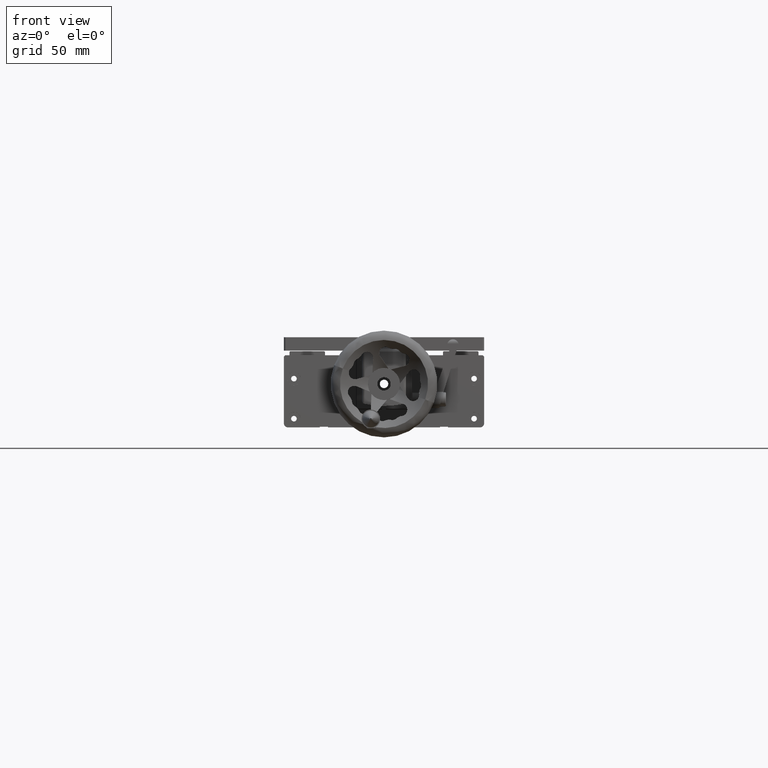
[diagram: clean part render]
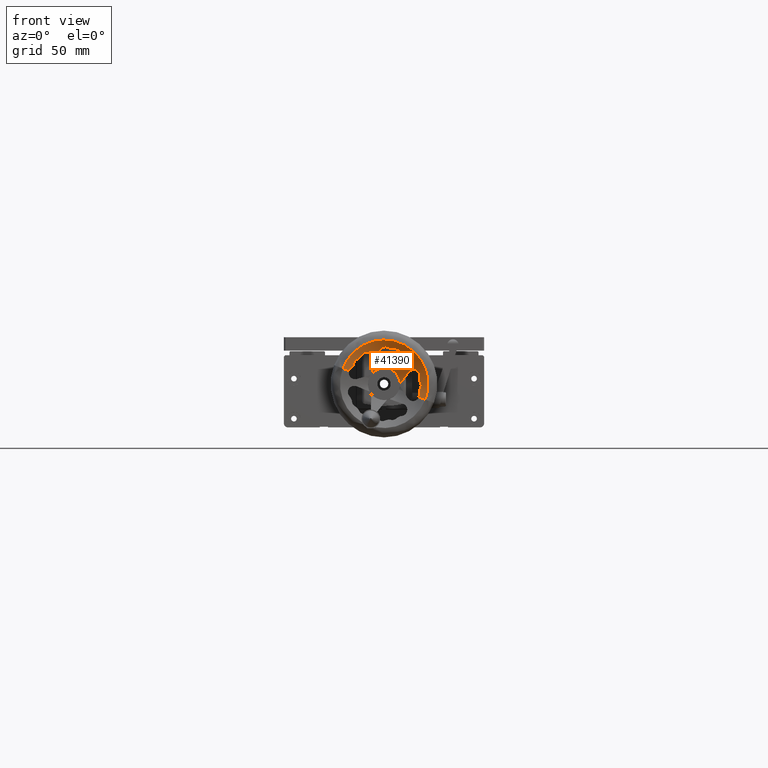
[diagram: same view with one face highlighted and labeled with its STEP entity id]
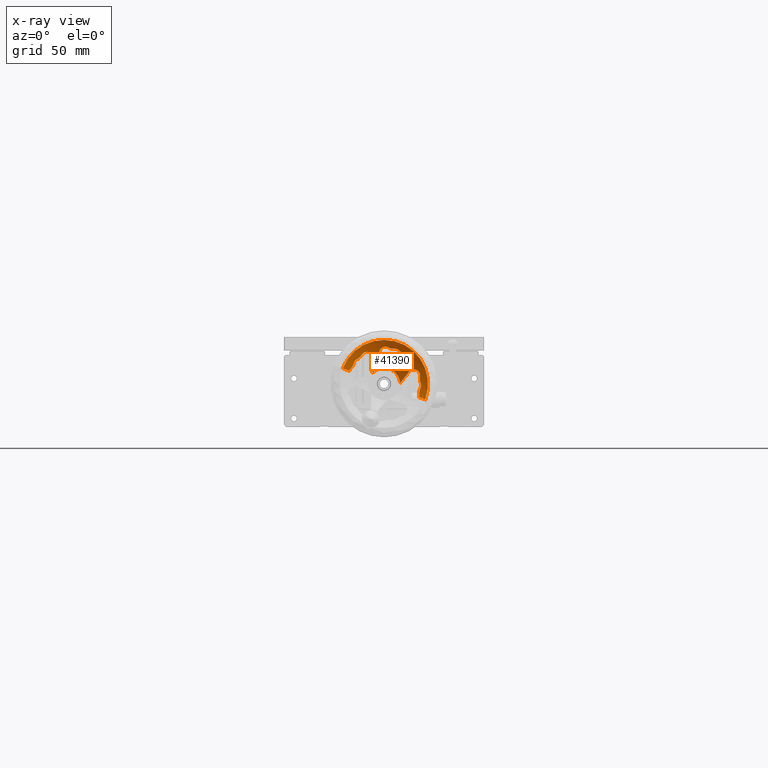
[diagram: x-ray of the same camera — body ghosted, the highlighted face saturated]
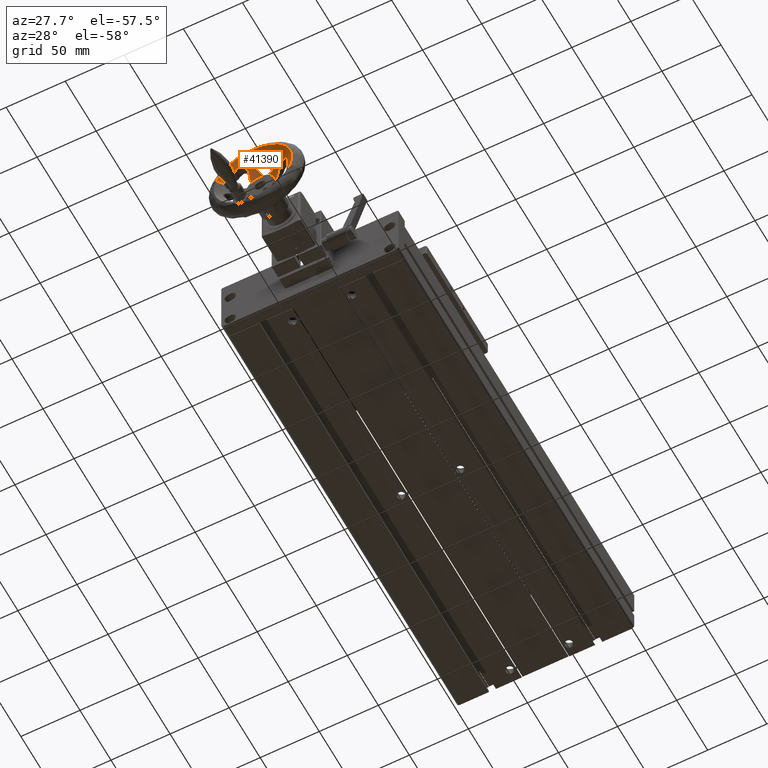
[diagram: same view with one face highlighted and labeled with its STEP entity id]
A machine part, front view. The second image highlights one B-rep face of the part: STEP entity #41390.
The next image is the same camera in x-ray: the body ghosted, the highlighted face saturated — about 0% of this face is hidden behind the body in this view.
A second angle (auxiliary view) of the same face is appended — the face is thin or edge-on in the first view.
In plain terms, the highlighted toroidal blend (fillet) surface has major radius 88.219 mm and minor (blend) radius 200 mm.
Its self-contained STEP definition (entity closure, byte-faithful):
#15 = CARTESIAN_POINT ( 'NONE',  ( -1.251474270565857028, -230.6672517025057516, 7.577416934611189703 ) ) ;
#97 = CARTESIAN_POINT ( 'NONE',  ( -29.11043134330199322, -230.8246480840629147, 39.72000367988550096 ) ) ;
#119 = CARTESIAN_POINT ( 'NONE',  ( -0.09421054364907681389, -231.2252468472381395, 10.35909060780936564 ) ) ;
#137 = CARTESIAN_POINT ( 'NONE',  ( -1.747598550836897413, -231.2658271515407762, 2.670001552165228276 ) ) ;
#184 = CARTESIAN_POINT ( 'NONE',  ( -1.071836799891750402, -230.7295666138571733, 8.100303935126479615 ) ) ;
#190 = CARTESIAN_POINT ( 'NONE',  ( -25.60282721551329388, -221.7940607396459427, 25.60854005638072550 ) ) ;
#230 = EDGE_CURVE ( 'NONE', #35567, #34683, #19566, .T. ) ;
#236 = CARTESIAN_POINT ( 'NONE',  ( -44.64287174048293849, -230.9596664332798639, 34.18233085000480287 ) ) ;
#471 = CARTESIAN_POINT ( 'NONE',  ( -11.32365439383828942, -231.1977958584856481, 34.84184575565993214 ) ) ;
#504 = CARTESIAN_POINT ( 'NONE',  ( -50.69275575712018878, -230.7841996942269986, 27.21851706879289878 ) ) ;
#542 = CARTESIAN_POINT ( 'NONE',  ( -30.35576520417523128, -230.1467556412366946, 38.66325935085155407 ) ) ;
#624 = CARTESIAN_POINT ( 'NONE',  ( -27.14345898058186535, -223.0604045670582707, 27.89589975946459433 ) ) ;
#711 = CARTESIAN_POINT ( 'NONE',  ( -50.88600797903935558, -230.7063936910209065, 26.70140006332925964 ) ) ;
#887 = DIRECTION ( 'NONE',  ( -0.9357330796241757342, 0.000000000000000000, 0.3527089504067849601 ) ) ;
#905 = CARTESIAN_POINT ( 'NONE',  ( -10.58405111890934691, -231.2681675500791982, 34.40207894826129831 ) ) ;
#1063 = EDGE_CURVE ( 'NONE', #35259, #41635, #34959, .T. ) ;
#1171 = CARTESIAN_POINT ( 'NONE',  ( -31.41264577065551578, -227.9685632785866574, 35.31961070689027338 ) ) ;
#1384 = ORIENTED_EDGE ( 'NONE', *, *, #31435, .F. ) ;
#1601 = CARTESIAN_POINT ( 'NONE',  ( -51.68751099054779985, -230.6793691775528714, 25.23183532385245442 ) ) ;
#1666 = EDGE_CURVE ( 'NONE', #21610, #29083, #27510, .T. ) ;
#1760 = CARTESIAN_POINT ( 'NONE',  ( -40.95282194118102126, -230.9261969511676114, 36.54358557440533417 ) ) ;
#1887 = CARTESIAN_POINT ( 'NONE',  ( -6.309048253267408590, -228.6074920186753729, 23.23750020429138630 ) ) ;
#1981 = CARTESIAN_POINT ( 'NONE',  ( -43.77269443316468767, -231.2314881615903346, 35.30030443959185504 ) ) ;
#2058 = CARTESIAN_POINT ( 'NONE',  ( -17.65149977641116408, -231.2659377550066040, 38.44904520844385587 ) ) ;
#2625 = CARTESIAN_POINT ( 'NONE',  ( -13.53472033259182083, -222.6226366815946847, 15.89007477967075133 ) ) ;
#2713 = VERTEX_POINT ( 'NONE', #12844 ) ;
#2767 = ORIENTED_EDGE ( 'NONE', *, *, #20194, .F. ) ;
#2883 = CARTESIAN_POINT ( 'NONE',  ( -12.75764972884986292, -230.8604761286815403, 35.26614478493905125 ) ) ;
#2948 = CARTESIAN_POINT ( 'NONE',  ( -9.206019924550350453, -228.9157247906524617, 28.42387298186278599 ) ) ;
#3006 = B_SPLINE_CURVE_WITH_KNOTS ( 'NONE', 3,
 ( #38133, #7416, #10135, #7189, #21121, #15, #41273, #34554 ),
 .UNSPECIFIED., .F., .F.,
 ( 4, 2, 2, 4 ),
 ( 3.556778064983737496E-17, 0.001665771565933717559, 0.002498657348900558666, 0.003331543131867399556 ),
 .UNSPECIFIED. ) ;
#3179 = CARTESIAN_POINT ( 'NONE',  ( -9.404230165889739368, -231.1270689145550250, 33.15456906067897336 ) ) ;
#3274 = CARTESIAN_POINT ( 'NONE',  ( -36.75593191590586173, -228.4463586638071604, 34.57189405988508213 ) ) ;
#3397 = CARTESIAN_POINT ( 'NONE',  ( -8.768741026429207608, -230.6509607355858975, 31.63119875561022099 ) ) ;
#3436 = VERTEX_POINT ( 'NONE', #6159 ) ;
#3475 = CARTESIAN_POINT ( 'NONE',  ( -26.07521255399808169, -231.2542024538802252, 40.29914110041999464 ) ) ;
#3504 = CARTESIAN_POINT ( 'NONE',  ( -0.8661047036434335045, -230.6865836009215514, 14.74529765654007463 ) ) ;
#3709 = CARTESIAN_POINT ( 'NONE',  ( 0.02657360641001855692, -231.2715208969111416, 11.28171204251044735 ) ) ;
#3781 = B_SPLINE_CURVE_WITH_KNOTS ( 'NONE', 3,
 ( #40404, #5667, #16426, #36393, #30133, #39961, #25873, #43573 ),
 .UNSPECIFIED., .F., .F.,
 ( 4, 2, 2, 4 ),
 ( 1.243205043575176586E-16, 0.003033436196410273060, 0.006066872392820421220, 0.01213374478564075744 ),
 .UNSPECIFIED. ) ;
#3932 = CARTESIAN_POINT ( 'NONE',  ( -1.724916406133282898, -231.0716637388797778, 21.46558485724892051 ) ) ;
#3948 = VERTEX_POINT ( 'NONE', #44232 ) ;
#4159 = CARTESIAN_POINT ( 'NONE',  ( -0.4006779422409262326, -230.9596664132262447, 13.36019273715610645 ) ) ;
#4203 = CARTESIAN_POINT ( 'NONE',  ( -44.82184531291257912, -230.8604761443751556, 33.86643442070432997 ) ) ;
#4304 = CARTESIAN_POINT ( 'NONE',  ( -31.41071755680489730, -228.4576811112558232, 36.05520637367717995 ) ) ;
#4307 = CARTESIAN_POINT ( 'NONE',  ( -50.95763369419255184, -230.6865836019239850, 26.53042673763086157 ) ) ;
#4426 = CARTESIAN_POINT ( 'NONE',  ( -44.64287174048293849, -230.9596664332798639, 34.18233085000480287 ) ) ;
#4671 = CARTESIAN_POINT ( 'NONE',  ( -22.73578093721375026, -230.6531243522441912, 39.02407946876078881 ) ) ;
#4723 = CARTESIAN_POINT ( 'NONE',  ( -11.85294843830956957, -231.1002210257394722, 35.05540478678162941 ) ) ;
#4758 = CARTESIAN_POINT ( 'NONE',  ( -51.20269293039049074, -230.6532000534531903, 26.02391311284409525 ) ) ;
#4867 = B_SPLINE_CURVE_WITH_KNOTS ( 'NONE', 3,
 ( #7496, #17591, #28157, #31297, #41801, #3475, #21207, #34865, #18027, #10439, #17133, #11092, #37774, #97, #34633, #38439, #24135, #13789, #542, #31064, #14231, #7718, #27924 ),
 .UNSPECIFIED., .F., .F.,
 ( 4, 2, 2, 1, 2, 2, 2, 2, 2, 2, 2, 4 ),
 ( 1.736110700089721879E-16, 0.001059331762156469391, 0.001588997643234625482, 0.002118663524312780922, 0.002648329405390937013, 0.003177995286469093104, 0.004237327048625381433, 0.005296658810781669328, 0.005826324691859795929, 0.006355990572937921662, 0.007415322335094180935, 0.008474654097250440207 ),
 .UNSPECIFIED. ) ;
#5124 = ORIENTED_EDGE ( 'NONE', *, *, #22479, .T. ) ;
#5128 = CARTESIAN_POINT ( 'NONE',  ( -39.86493628493158070, -230.5446354805237092, 36.50276479583381928 ) ) ;
#5346 = CARTESIAN_POINT ( 'NONE',  ( -43.32839094334096330, -231.2681675518207669, 35.66663849502686645 ) ) ;
#5425 = EDGE_CURVE ( 'NONE', #23451, #22850, #38806, .T. ) ;
#5434 = CARTESIAN_POINT ( 'NONE',  ( -16.70708034827027078, -231.1356288341648906, 37.85878606016145653 ) ) ;
#5475 = CARTESIAN_POINT ( 'NONE',  ( -4.357755286596519895, -229.8006780505870097, 23.18659850079991358 ) ) ;
#5537 = VERTEX_POINT ( 'NONE', #5927 ) ;
#5654 = VERTEX_POINT ( 'NONE', #17123 ) ;
#5667 = CARTESIAN_POINT ( 'NONE',  ( -36.48314934651601504, -221.4030008482865526, 21.70397116928012693 ) ) ;
#5754 = CARTESIAN_POINT ( 'NONE',  ( -15.24826781174346024, -221.4030008482863536, 13.69983736100359728 ) ) ;
#5783 = CARTESIAN_POINT ( 'NONE',  ( -39.10172791565873496, -230.1936771701986117, 36.31780667586350830 ) ) ;
#5891 = CARTESIAN_POINT ( 'NONE',  ( -27.82647947996263227, -221.0472645979106971, 12.50000000000231637 ) ) ;
#5927 = CARTESIAN_POINT ( 'NONE',  ( -53.90536040908840931, -231.2658271515405772, 22.32999844783952881 ) ) ;
#5947 = DIRECTION ( 'NONE',  ( 0.9357330796241758453, 0.000000000000000000, -0.3527089504067847936 ) ) ;
#6159 = CARTESIAN_POINT ( 'NONE',  ( -58.70567110756002904, -235.0472645979105550, 24.13939536342605408 ) ) ;
#6315 = CARTESIAN_POINT ( 'NONE',  ( -11.66313210932026756, -226.7145665492642479, 26.22889493614411194 ) ) ;
#6412 = CARTESIAN_POINT ( 'NONE',  ( -52.94303986058586275, -231.0588892356517761, 23.89678473942380776 ) ) ;
#6466 = CARTESIAN_POINT ( 'NONE',  ( -13.10796256831810069, -230.7841996630289145, 35.36627632601064164 ) ) ;
#6526 = CARTESIAN_POINT ( 'NONE',  ( -9.455268662336289154, -228.6034456413083547, 28.00824651433754653 ) ) ;
#6932 = VERTEX_POINT ( 'NONE', #36598 ) ;
#7075 = CARTESIAN_POINT ( 'NONE',  ( -0.7923870789131953751, -231.0988003334202574, 18.23983745885011487 ) ) ;
#7189 = CARTESIAN_POINT ( 'NONE',  ( -1.435478733286328579, -230.6535307270791009, 6.761800633431623631 ) ) ;
#7245 = CARTESIAN_POINT ( 'NONE',  ( -49.09027173442304104, -231.2390054235078196, 30.46172359483011149 ) ) ;
#7314 = ORIENTED_EDGE ( 'NONE', *, *, #39875, .F. ) ;
#7382 = CARTESIAN_POINT ( 'NONE',  ( -31.01142681135522849, -226.8822082838673566, 33.72390581578375190 ) ) ;
#7416 = CARTESIAN_POINT ( 'NONE',  ( -1.538300897532330014, -230.8113833044534715, 5.382371716724052568 ) ) ;
#7496 = CARTESIAN_POINT ( 'NONE',  ( -24.43368368756598130, -230.9596663953781785, 39.72872478699030552 ) ) ;
#7520 = CARTESIAN_POINT ( 'NONE',  ( -0.2814740170182649104, -231.1299046920082674, 9.778950854992029207 ) ) ;
#7523 = DIRECTION ( 'NONE',  ( 4.228820139608123808E-15, 1.000000000000000000, -4.668327421766500901E-16 ) ) ;
#7677 = CARTESIAN_POINT ( 'NONE',  ( -31.24495531687533045, -229.0533374946240031, 36.96441875835737534 ) ) ;
#7716 = ORIENTED_EDGE ( 'NONE', *, *, #28981, .T. ) ;
#7718 = CARTESIAN_POINT ( 'NONE',  ( -31.01545888794159112, -229.4689577717829252, 37.60614130149133416 ) ) ;
#7783 = CARTESIAN_POINT ( 'NONE',  ( -47.52948998401029002, -230.8604277577395862, 31.39853802009229256 ) ) ;
#8181 = CARTESIAN_POINT ( 'NONE',  ( -5.831446046305917008, -228.9178738112350118, 23.30110449741069445 ) ) ;
#8259 = CARTESIAN_POINT ( 'NONE',  ( -21.63067046663480397, -230.6865836009213240, 38.83467524608060728 ) ) ;
#8413 = CARTESIAN_POINT ( 'NONE',  ( -7.001895771518103828, -228.1335088370313713, 23.05258266812591472 ) ) ;
#8564 = CARTESIAN_POINT ( 'NONE',  ( -1.477178048168888091, -230.9596664332800344, 4.843053232189254764 ) ) ;
#8605 = B_SPLINE_CURVE_WITH_KNOTS ( 'NONE', 3,
 ( #36971, #2883, #6466, #10076, #23328, #23766, #13649, #9643, #16564, #30271, #43929, #23093 ),
 .UNSPECIFIED., .F., .F.,
 ( 4, 2, 2, 2, 2, 4 ),
 ( 3.417008968066606564E-17, 0.001114276193955983634, 0.001671414290933961790, 0.002228552387911939946, 0.003342828581867896259, 0.004457104775823857341 ),
 .UNSPECIFIED. ) ;
#8723 = CARTESIAN_POINT ( 'NONE',  ( -42.32193144314729238, -231.2154519200252878, 36.22261789138258337 ) ) ;
#8802 = CARTESIAN_POINT ( 'NONE',  ( -18.89562272516246466, -231.2128299121012276, 38.82240954611904016 ) ) ;
#9035 = CARTESIAN_POINT ( 'NONE',  ( -19.44551521887871104, -231.1347387500530033, 38.88939589239999606 ) ) ;
#9080 = CARTESIAN_POINT ( 'NONE',  ( -2.285981301982375591, -230.8452621190603224, 22.08222870984774389 ) ) ;
#9590 = CARTESIAN_POINT ( 'NONE',  ( -53.59240703488189439, -231.2329824527881783, 23.00339452172125831 ) ) ;
#9643 = CARTESIAN_POINT ( 'NONE',  ( -14.78854631104180939, -230.6531243613655136, 36.15278636238678445 ) ) ;
#9814 = CARTESIAN_POINT ( 'NONE',  ( -52.67410403862962198, -230.9596663872225406, 24.14087926122622818 ) ) ;
#9997 = B_SPLINE_CURVE_WITH_KNOTS ( 'NONE', 3,
 ( #4159, #38665, #30866, #24811, #42053, #3709, #38006, #119, #10458, #7520 ),
 .UNSPECIFIED., .F., .F.,
 ( 4, 2, 2, 2, 4 ),
 ( 0.000000000000000000, 0.0009245142210640179808, 0.001849028442128035962, 0.002773542663192053725, 0.003698056884256071923 ),
 .UNSPECIFIED. ) ;
#10076 = CARTESIAN_POINT ( 'NONE',  ( -13.62507958530520646, -230.7063936694198105, 35.55952856705073373 ) ) ;
#10135 = CARTESIAN_POINT ( 'NONE',  ( -1.537697110410599421, -230.7139133281197303, 5.929111352157447001 ) ) ;
#10140 = CARTESIAN_POINT ( 'NONE',  ( -12.14811200581972628, -226.4222165838596084, 26.10137416611496519 ) ) ;
#10251 = CARTESIAN_POINT ( 'NONE',  ( -0.4754770725625681038, -231.0269419708660905, 9.320953952445764301 ) ) ;
#10360 = CARTESIAN_POINT ( 'NONE',  ( -8.663719101622632479, -230.3162707390106050, 30.84340884725546061 ) ) ;
#10439 = CARTESIAN_POINT ( 'NONE',  ( -27.31216661449100513, -231.2295034938307197, 40.31481576106340015 ) ) ;
#10458 = CARTESIAN_POINT ( 'NONE',  ( -0.1743516661469823870, -231.1858394796079494, 10.06314530813198971 ) ) ;
#10468 = CARTESIAN_POINT ( 'NONE',  ( -1.003469391926770982, -230.7828937303671637, 16.96412911401098356 ) ) ;
#10629 = CARTESIAN_POINT ( 'NONE',  ( -49.36124636741128313, -231.2659377547786619, 30.19567671165900435 ) ) ;
#10674 = CARTESIAN_POINT ( 'NONE',  ( -1.159090727231262274, -231.2411873942976399, 20.48007631129516071 ) ) ;
#10842 = CARTESIAN_POINT ( 'NONE',  ( -50.10079209053726146, -231.2128299124469777, 29.12782139794272140 ) ) ;
#10884 = ORIENTED_EDGE ( 'NONE', *, *, #40144, .F. ) ;
#11092 = CARTESIAN_POINT ( 'NONE',  ( -28.17030365857313967, -231.1009350148752617, 40.13818652283171673 ) ) ;
#11123 = FACE_OUTER_BOUND ( 'NONE', #23298, .T. ) ;
#11175 = CARTESIAN_POINT ( 'NONE',  ( -45.48987421334945225, -230.6865835889794312, 32.99164842626442606 ) ) ;
#11345 = CARTESIAN_POINT ( 'NONE',  ( -0.8877381073699135428, -231.2678754046117149, 19.66122285645100121 ) ) ;
#11447 = B_SPLINE_CURVE_WITH_KNOTS ( 'NONE', 3,
 ( #41439, #17685, #17450, #624, #28476, #190, #28018, #37859 ),
 .UNSPECIFIED., .F., .F.,
 ( 4, 2, 2, 4 ),
 ( 4.380442988691107781E-16, 0.006066872392816883251, 0.009100308589225123215, 0.01213374478563336231 ),
 .UNSPECIFIED. ) ;
#11511 = CARTESIAN_POINT ( 'NONE',  ( -19.80903196666800525, -231.0587844104445310, 38.89015824602493865 ) ) ;
#11558 = CARTESIAN_POINT ( 'NONE',  ( -5.094521958954942420, -229.3730282655863562, 23.30282529106901634 ) ) ;
#11778 = CARTESIAN_POINT ( 'NONE',  ( -7.660324587658288387, -227.6530563109672869, 22.76292629540331092 ) ) ;
#11873 = CARTESIAN_POINT ( 'NONE',  ( -36.89868202254425000, -228.6034456292862558, 34.76437147167755626 ) ) ;
#11952 = CARTESIAN_POINT ( 'NONE',  ( -30.62592210225523104, -226.4222165838500018, 33.06627596005964165 ) ) ;
#11992 = CARTESIAN_POINT ( 'NONE',  ( -15.83491941461141828, -221.0472645979110098, 12.94998577652424210 ) ) ;
#11999 = CARTESIAN_POINT ( 'NONE',  ( -2.930902668012779433, -230.5487792153343207, 22.57889346255842966 ) ) ;
#12069 = CARTESIAN_POINT ( 'NONE',  ( -23.09124879036163236, -230.6793691793447749, 39.12754299439421857 ) ) ;
#12140 = ORIENTED_EDGE ( 'NONE', *, *, #230, .F. ) ;
#12201 = CARTESIAN_POINT ( 'NONE',  ( -8.977692602492350460, -226.5680829445339839, 21.71481717741857054 ) ) ;
#12304 = CARTESIAN_POINT ( 'NONE',  ( -44.50433564307560630, -231.0364455747977388, 34.42685332880790128 ) ) ;
#12385 = CARTESIAN_POINT ( 'NONE',  ( -16.18560038869533457, -230.9596664961959789, 37.34762474592213977 ) ) ;
#12844 = CARTESIAN_POINT ( 'NONE',  ( -24.43368368756598130, -230.9596663953781785, 39.72872478699030552 ) ) ;
#12853 = DIRECTION ( 'NONE',  ( -0.9357330796241757342, 4.625929269271485322E-15, 0.3527089504067851267 ) ) ;
#12942 = ORIENTED_EDGE ( 'NONE', *, *, #23780, .T. ) ;
#12989 = CARTESIAN_POINT ( 'NONE',  ( -27.82647947996269266, -235.0472645979106971, 12.50000000000232347 ) ) ;
#13296 = EDGE_CURVE ( 'NONE', #15267, #5654, #8605, .T. ) ;
#13649 = CARTESIAN_POINT ( 'NONE',  ( -14.30256654763686264, -230.6532000484875198, 35.87621354676069529 ) ) ;
#13712 = CARTESIAN_POINT ( 'NONE',  ( -9.594213350244817917, -228.4463586750179900, 27.81300430227310017 ) ) ;
#13789 = CARTESIAN_POINT ( 'NONE',  ( -30.02387999602019164, -230.3696240543054046, 39.01178283300781402 ) ) ;
#13816 = CARTESIAN_POINT ( 'NONE',  ( -1.027468499520208578, -230.6531243522443901, 15.85484929442473501 ) ) ;
#13985 = CARTESIAN_POINT ( 'NONE',  ( -50.01141594461855533, -231.2328291351408609, 29.29347685866189721 ) ) ;
#14114 = B_SPLINE_CURVE_WITH_KNOTS ( 'NONE', 3,
 ( #9814, #6412, #24764, #19904, #9590, #27283, #34018, #38410 ),
 .UNSPECIFIED., .F., .F.,
 ( 4, 2, 2, 4 ),
 ( 3.469446951953614189E-18, 0.001114574108103040312, 0.001671861162154564479, 0.002229148216206088863 ),
 .UNSPECIFIED. ) ;
#14211 = CARTESIAN_POINT ( 'NONE',  ( -48.19167670051806596, -231.0588080310190549, 31.10055233200387192 ) ) ;
#14231 = CARTESIAN_POINT ( 'NONE',  ( -30.88067398539558184, -229.6455795070860120, 37.88075420735324883 ) ) ;
#14256 = CARTESIAN_POINT ( 'NONE',  ( -0.8248546637887524957, -231.0361768311458661, 17.96156408255822967 ) ) ;
#14527 = CARTESIAN_POINT ( 'NONE',  ( -46.29267312838413773, -230.6531243593418026, 32.20892427327859764 ) ) ;
#14584 = ORIENTED_EDGE ( 'NONE', *, *, #29616, .F. ) ;
#14679 = B_SPLINE_CURVE_WITH_KNOTS ( 'NONE', 3,
 ( #18358, #42546, #42332, #32050, #8259, #15188, #38525, #4671, #12069, #25097, #35393, #39185 ),
 .UNSPECIFIED., .F., .F.,
 ( 4, 2, 2, 2, 2, 4 ),
 ( -1.469766198938099455E-10, 0.001114276024044777436, 0.001671414109555480979, 0.002228552195066184523, 0.003342828366087591610, 0.004457104537108998697 ),
 .UNSPECIFIED. ) ;
#14693 = CARTESIAN_POINT ( 'NONE',  ( -0.8819917825959727731, -230.9596663953782922, 17.68739814752235162 ) ) ;
#14846 = CARTESIAN_POINT ( 'NONE',  ( -31.36642957711494617, -228.6978953784460487, 36.42017830273117340 ) ) ;
#15052 = CARTESIAN_POINT ( 'NONE',  ( -51.47926572495681796, -230.6531243515185281, 25.53793335269826414 ) ) ;
#15170 = VERTEX_POINT ( 'NONE', #27858 ) ;
#15188 = CARTESIAN_POINT ( 'NONE',  ( -22.00204673309162118, -230.6599187543164078, 38.88057039902998469 ) ) ;
#15203 = ORIENTED_EDGE ( 'NONE', *, *, #20250, .F. ) ;
#15267 = VERTEX_POINT ( 'NONE', #21577 ) ;
#15440 = CARTESIAN_POINT ( 'NONE',  ( -41.50099401452267500, -231.0682110994576419, 36.46687238763036021 ) ) ;
#15524 = CARTESIAN_POINT ( 'NONE',  ( -18.17227609273661315, -231.2657713217310516, 38.64504338910678172 ) ) ;
#15566 = CARTESIAN_POINT ( 'NONE',  ( -7.867297511578441593, -227.4949366025862219, 22.64525642428828078 ) ) ;
#15660 = CARTESIAN_POINT ( 'NONE',  ( -43.97518401778625474, -231.1977958677377956, 35.09912940943191018 ) ) ;
#15734 = CARTESIAN_POINT ( 'NONE',  ( -16.42949501889319919, -231.0588080328817853, 37.61634030320131927 ) ) ;
#15843 = CARTESIAN_POINT ( 'NONE',  ( -0.2814740170182649104, -231.1299046920082674, 9.778950854992029207 ) ) ;
#15918 = ORIENTED_EDGE ( 'NONE', *, *, #42431, .F. ) ;
#16037 = CARTESIAN_POINT ( 'NONE',  ( -0.5977545822332952508, -230.9596664563088666, 9.107204401189207488 ) ) ;
#16270 = CARTESIAN_POINT ( 'NONE',  ( -1.071836799891750402, -230.7295666138571733, 8.100303935126479615 ) ) ;
#16306 = EDGE_CURVE ( 'NONE', #22850, #15267, #29639, .T. ) ;
#16426 = CARTESIAN_POINT ( 'NONE',  ( -36.42986860247834358, -221.7940607396464827, 22.63706798879840321 ) ) ;
#16463 = CARTESIAN_POINT ( 'NONE',  ( -13.84177004444879877, -225.4012652566526924, 25.65604317649873067 ) ) ;
#16564 = CARTESIAN_POINT ( 'NONE',  ( -15.09464434128460297, -230.6793691984168504, 36.36103164305231417 ) ) ;
#16625 = CARTESIAN_POINT ( 'NONE',  ( -9.096209924483428466, -229.0706407672515184, 28.64416201031078302 ) ) ;
#16740 = EDGE_CURVE ( 'NONE', #29083, #35567, #11447, .T. ) ;
#17068 = EDGE_CURVE ( 'NONE', #42314, #39900, #25810, .T. ) ;
#17087 = VERTEX_POINT ( 'NONE', #137 ) ;
#17123 = CARTESIAN_POINT ( 'NONE',  ( -16.18560038869533457, -230.9596664961959789, 37.34762474592213977 ) ) ;
#17133 = CARTESIAN_POINT ( 'NONE',  ( -27.83299107068556566, -231.1660041917474189, 40.23201911185962132 ) ) ;
#17163 = CARTESIAN_POINT ( 'NONE',  ( -0.9655688553935866114, -230.6532000530874882, 15.29911799590441568 ) ) ;
#17279 = CARTESIAN_POINT ( 'NONE',  ( -11.22257099925469426, -227.0192036727449931, 26.42591416748122057 ) ) ;
#17450 = CARTESIAN_POINT ( 'NONE',  ( -28.65704477944231243, -224.4247326185640361, 30.14310460229039990 ) ) ;
#17463 = CARTESIAN_POINT ( 'NONE',  ( -31.26500875906408083, -227.3589262219448983, 34.41694003232629484 ) ) ;
#17591 = CARTESIAN_POINT ( 'NONE',  ( -24.73331200770741134, -231.0539713975002769, 39.90013010062876475 ) ) ;
#17685 = CARTESIAN_POINT ( 'NONE',  ( -29.64761374588260168, -225.4012652566472354, 31.61379188029119547 ) ) ;
#17878 = CARTESIAN_POINT ( 'NONE',  ( -45.02532868806006405, -230.7841996747563940, 33.56420945392768118 ) ) ;
#17984 = CARTESIAN_POINT ( 'NONE',  ( -31.42203928134654944, -228.3365862553706336, 35.87210649528169171 ) ) ;
#18027 = CARTESIAN_POINT ( 'NONE',  ( -27.13425547172059638, -231.2451208571030747, 40.33290510928991779 ) ) ;
#18358 = CARTESIAN_POINT ( 'NONE',  ( -20.16953262839196981, -230.9596664132261310, 38.84930144128863105 ) ) ;
#19046 = CARTESIAN_POINT ( 'NONE',  ( -36.50172605534056203, -228.1301285126477865, 34.16853572545047513 ) ) ;
#19119 = CARTESIAN_POINT ( 'NONE',  ( -27.82647947996336413, -394.1257330768476663, 12.50000000000239631 ) ) ;
#19173 = CARTESIAN_POINT ( 'NONE',  ( -7.227972172854812527, -227.9721376465305127, 22.96662502432517527 ) ) ;
#19566 = CIRCLE ( 'NONE', #41048, 12.00000000000000000 ) ;
#19730 = EDGE_CURVE ( 'NONE', #2713, #21610, #4867, .T. ) ;
#19904 = CARTESIAN_POINT ( 'NONE',  ( -53.49552751510902482, -231.2129968519608383, 23.16501415919911366 ) ) ;
#19905 = CARTESIAN_POINT ( 'NONE',  ( -9.131864057291469550, -226.4222165838516503, 21.51775693059106231 ) ) ;
#19952 = VERTEX_POINT ( 'NONE', #38494 ) ;
#20117 = CARTESIAN_POINT ( 'NONE',  ( -0.9372173970072473770, -230.6599187543166636, 15.11267985697198490 ) ) ;
#20194 = EDGE_CURVE ( 'NONE', #35739, #39900, #31572, .T. ) ;
#20250 = EDGE_CURVE ( 'NONE', #6932, #17087, #22330, .T. ) ;
#20453 = ORIENTED_EDGE ( 'NONE', *, *, #19730, .F. ) ;
#20554 = DIRECTION ( 'NONE',  ( -4.228820139608123808E-15, -1.000000000000000000, 4.668327421766500901E-16 ) ) ;
#20574 = CARTESIAN_POINT ( 'NONE',  ( -0.5510455524432069652, -230.8604761307232138, 13.69066479534835601 ) ) ;
#20713 = ORIENTED_EDGE ( 'NONE', *, *, #16740, .F. ) ;
#20774 = CARTESIAN_POINT ( 'NONE',  ( -0.7781222560563687551, -231.1960453808967202, 18.80472083248437443 ) ) ;
#21002 = CARTESIAN_POINT ( 'NONE',  ( -1.346140880607694879, -231.1947674802873394, 20.86646553902140511 ) ) ;
#21121 = CARTESIAN_POINT ( 'NONE',  ( -1.384405582693305714, -230.6483000941420869, 7.038588828530657260 ) ) ;
#21207 = CARTESIAN_POINT ( 'NONE',  ( -26.42534982068305638, -231.2709559180370888, 40.34363460865557016 ) ) ;
#21332 = CARTESIAN_POINT ( 'NONE',  ( 54.72293740786737715, -394.1257330768480642, -18.61562348409299972 ) ) ;
#21365 = ORIENTED_EDGE ( 'NONE', *, *, #1666, .F. ) ;
#21387 = CARTESIAN_POINT ( 'NONE',  ( -31.33346619148524326, -228.8170147959156395, 36.60205068463839240 ) ) ;
#21494 = CARTESIAN_POINT ( 'NONE',  ( -47.86074544036087275, -230.9596664563089234, 31.24947223149682074 ) ) ;
#21577 = CARTESIAN_POINT ( 'NONE',  ( -12.40190850109953047, -230.9596664132259036, 35.19354816493392235 ) ) ;
#21610 = VERTEX_POINT ( 'NONE', #42047 ) ;
#21845 = CARTESIAN_POINT ( 'NONE',  ( -18.34933906208931731, -231.2591845237837163, 38.69991756664008875 ) ) ;
#21919 = EDGE_CURVE ( 'NONE', #27565, #15170, #35249, .T. ) ;
#22203 = CARTESIAN_POINT ( 'NONE',  ( -39.35047934338588504, -230.3162707219190679, 36.39329318674165137 ) ) ;
#22261 = CARTESIAN_POINT ( 'NONE',  ( -52.67410403862962198, -230.9596663872225406, 24.14087926122622818 ) ) ;
#22330 = CIRCLE ( 'NONE', #35809, 200.0000000000050591 ) ;
#22423 = CARTESIAN_POINT ( 'NONE',  ( -42.58352469576978905, -231.2440946091133753, 36.10825220637888577 ) ) ;
#22479 = EDGE_CURVE ( 'NONE', #31050, #42314, #9997, .T. ) ;
#22555 = EDGE_CURVE ( 'NONE', #19952, #26907, #38333, .T. ) ;
#22642 = CARTESIAN_POINT ( 'NONE',  ( -38.38007743206217981, -229.8009400136767226, 36.03220828935206299 ) ) ;
#22766 = CARTESIAN_POINT ( 'NONE',  ( -8.262944070131752028, -227.1815717326843753, 22.37840081353473209 ) ) ;
#22839 = ORIENTED_EDGE ( 'NONE', *, *, #21919, .F. ) ;
#22850 = VERTEX_POINT ( 'NONE', #27453 ) ;
#23016 = CARTESIAN_POINT ( 'NONE',  ( -110.3758963677940983, -394.1257330768472684, 43.61562348409778167 ) ) ;
#23047 = CARTESIAN_POINT ( 'NONE',  ( -10.21094459831520318, -225.4012652566501913, 20.13848812861085946 ) ) ;
#23093 = CARTESIAN_POINT ( 'NONE',  ( -16.18560038869533457, -230.9596664961959789, 37.34762474592213977 ) ) ;
#23154 = CARTESIAN_POINT ( 'NONE',  ( -8.918330004871993566, -230.8426987433422539, 32.15759982819604090 ) ) ;
#23298 = EDGE_LOOP ( 'NONE', ( #15203, #42120, #12942, #35740, #22839, #7716, #7314, #28643, #1384, #12140, #20713, #21365, #20453, #14584, #25331, #33222, #36147, #37635, #42354, #34598, #24006, #15918, #5124, #37356, #2767, #25071, #10884 ) ) ;
#23328 = CARTESIAN_POINT ( 'NONE',  ( -13.79605291475294493, -230.6865835839499539, 35.63115428906388615 ) ) ;
#23451 = VERTEX_POINT ( 'NONE', #34223 ) ;
#23480 = VERTEX_POINT ( 'NONE', #11992 ) ;
#23766 = CARTESIAN_POINT ( 'NONE',  ( -14.13507035580979654, -230.6599187452456476, 35.78956476413510757 ) ) ;
#23780 = EDGE_CURVE ( 'NONE', #3436, #5537, #35045, .T. ) ;
#23828 = CARTESIAN_POINT ( 'NONE',  ( -8.822106482411950168, -229.5185468464328835, 29.32358290060140860 ) ) ;
#24006 = ORIENTED_EDGE ( 'NONE', *, *, #22555, .F. ) ;
#24135 = CARTESIAN_POINT ( 'NONE',  ( -29.90640498145015869, -230.4409009282476859, 39.12319826635707187 ) ) ;
#24167 = CARTESIAN_POINT ( 'NONE',  ( -0.9561020848708630115, -230.8604277091206995, 17.33178818953754785 ) ) ;
#24324 = CARTESIAN_POINT ( 'NONE',  ( -50.44748391262683640, -231.0587844106613602, 28.28005308461880318 ) ) ;
#24370 = CARTESIAN_POINT ( 'NONE',  ( -1.280146825306339053, -231.2127426778806694, 20.74026400749414378 ) ) ;
#24544 = CARTESIAN_POINT ( 'NONE',  ( -47.86074544036087275, -230.9596664563089234, 31.24947223149682074 ) ) ;
#24581 = CARTESIAN_POINT ( 'NONE',  ( -44.64287174048293849, -230.9596664332798639, 34.18233085000480287 ) ) ;
#24672 = CARTESIAN_POINT ( 'NONE',  ( -31.34921764589707038, -227.6007957380787161, 34.77256676295284876 ) ) ;
#24745 = CARTESIAN_POINT ( 'NONE',  ( -31.12245461518179823, -229.2852968396923359, 37.32228277949563733 ) ) ;
#24764 = CARTESIAN_POINT ( 'NONE',  ( -53.18264150034568871, -231.1349001205016123, 23.62289045163663559 ) ) ;
#24811 = CARTESIAN_POINT ( 'NONE',  ( -0.03725620140382038259, -231.2082210768653567, 12.20827902205257942 ) ) ;
#24863 = CARTESIAN_POINT ( 'NONE',  ( -47.20420572526743541, -230.7828937674312897, 31.57632164105860539 ) ) ;
#24969 = CARTESIAN_POINT ( 'NONE',  ( -31.42308513450763030, -228.0923246801207256, 35.50474791405795116 ) ) ;
#24975 = CARTESIAN_POINT ( 'NONE',  ( -1.626106168138960584, -231.2590850060960577, 3.024544020107531761 ) ) ;
#24989 = CARTESIAN_POINT ( 'NONE',  ( -49.70858044755338057, -231.2657713218470406, 29.76095577056980090 ) ) ;
#25071 = ORIENTED_EDGE ( 'NONE', *, *, #28141, .F. ) ;
#25097 = CARTESIAN_POINT ( 'NONE',  ( -23.78335260592976397, -230.7828937303670216, 39.38969029219212814 ) ) ;
#25249 = CARTESIAN_POINT ( 'NONE',  ( -3.626332347249857424, -230.1981381626737004, 22.94548442217393358 ) ) ;
#25331 = ORIENTED_EDGE ( 'NONE', *, *, #29010, .T. ) ;
#25361 = CARTESIAN_POINT ( 'NONE',  ( -24.54884553570247618, -221.0472645979109814, 24.04370459287163442 ) ) ;
#25565 = CARTESIAN_POINT ( 'NONE',  ( -37.39251834154508458, -229.0706407530629178, 35.30236531829343249 ) ) ;
#25621 = CARTESIAN_POINT ( 'NONE',  ( -1.681839396434725131, -231.2658271515407762, 2.844459886696378614 ) ) ;
#25680 = CARTESIAN_POINT ( 'NONE',  ( -6.543129151941471378, -228.4506557143349994, 23.18762856233587755 ) ) ;
#25774 = CARTESIAN_POINT ( 'NONE',  ( -35.91727301764706937, -226.4222165838594378, 31.61406931533711173 ) ) ;
#25810 = B_SPLINE_CURVE_WITH_KNOTS ( 'NONE', 3,
 ( #31937, #37813, #10251, #40936 ),
 .UNSPECIFIED., .F., .F.,
 ( 4, 4 ),
 ( 0.003698056884256071923, 0.004453585710520113587 ),
 .UNSPECIFIED. ) ;
#25873 = CARTESIAN_POINT ( 'NONE',  ( -36.01710719466053945, -225.4012652566526924, 29.86568995741001586 ) ) ;
#25875 = DIRECTION ( 'NONE',  ( -4.228820139608123808E-15, -1.000000000000000000, 4.668327421766500901E-16 ) ) ;
#26227 = CARTESIAN_POINT ( 'NONE',  ( -35.88868544715425202, -226.7145665476632530, 32.11471868850833999 ) ) ;
#26602 = DIRECTION ( 'NONE',  ( 0.3527089504067849046, -1.054711873393899305E-15, 0.9357330796241759563 ) ) ;
#26630 = EDGE_CURVE ( 'NONE', #3436, #6932, #35811, .T. ) ;
#26632 = CARTESIAN_POINT ( 'NONE',  ( -15.83491941461141828, -221.0472645979110098, 12.94998577652424210 ) ) ;
#26682 = DIRECTION ( 'NONE',  ( 4.228820139608123808E-15, 1.000000000000000000, -4.668327421766500901E-16 ) ) ;
#26780 = CARTESIAN_POINT ( 'NONE',  ( -0.5977545822332952508, -230.9596664563088666, 9.107204401189207488 ) ) ;
#26802 = CARTESIAN_POINT ( 'NONE',  ( -12.14811200581972628, -226.4222165838596084, 26.10137416611496519 ) ) ;
#26907 = VERTEX_POINT ( 'NONE', #30706 ) ;
#27075 = CARTESIAN_POINT ( 'NONE',  ( -12.97304374768365776, -223.0604045670586686, 16.60800357267045513 ) ) ;
#27283 = CARTESIAN_POINT ( 'NONE',  ( -53.76420948016358636, -231.2592816643115725, 22.67318533853711315 ) ) ;
#27453 = CARTESIAN_POINT ( 'NONE',  ( -12.14811200581972628, -226.4222165838596084, 26.10137416611496519 ) ) ;
#27510 = B_SPLINE_CURVE_WITH_KNOTS ( 'NONE', 3,
 ( #24745, #38393, #7677, #21387, #14846, #4304, #17984, #24969, #1171, #24672, #17463, #7382, #34963, #38535 ),
 .UNSPECIFIED., .F., .F.,
 ( 4, 2, 2, 2, 2, 2, 4 ),
 ( 0.008474654097250440207, 0.009134211745428815615, 0.009793769393607189289, 0.01045332704178556296, 0.01111288468996393664, 0.01243199998632066663, 0.01375111528267739663 ),
 .UNSPECIFIED. ) ;
#27514 = CARTESIAN_POINT ( 'NONE',  ( -1.038914446844334538, -230.6793691793450307, 16.22489130021315518 ) ) ;
#27536 = AXIS2_PLACEMENT_3D ( 'NONE', #19119, #7523, #42853 ) ;
#27565 = VERTEX_POINT ( 'NONE', #32632 ) ;
#27691 = CARTESIAN_POINT ( 'NONE',  ( -49.81548435864679192, -231.2591845239852830, 29.60951593295079221 ) ) ;
#27737 = CARTESIAN_POINT ( 'NONE',  ( -0.9586351575859999308, -231.2708483297516580, 19.93849897936893001 ) ) ;
#27851 = CARTESIAN_POINT ( 'NONE',  ( -12.12654379403820215, -231.0364455574018905, 35.13735411235439443 ) ) ;
#27858 = CARTESIAN_POINT ( 'NONE',  ( -52.67410403862962198, -230.9596663872225406, 24.14087926122622818 ) ) ;
#27924 = CARTESIAN_POINT ( 'NONE',  ( -31.12245461518179823, -229.2852968396923359, 37.32228277949563733 ) ) ;
#28018 = CARTESIAN_POINT ( 'NONE',  ( -25.08071145631225818, -221.4030008482862399, 24.83336030543722472 ) ) ;
#28141 = EDGE_CURVE ( 'NONE', #40268, #35739, #3006, .T. ) ;
#28157 = CARTESIAN_POINT ( 'NONE',  ( -25.05037846431930504, -231.1272769549023280, 40.03796776107332533 ) ) ;
#28231 = CARTESIAN_POINT ( 'NONE',  ( -46.58531565611669123, -230.6793691951291123, 31.98215907279681502 ) ) ;
#28407 = CARTESIAN_POINT ( 'NONE',  ( -0.7971082794708805874, -231.2307636894806535, 19.09480902086631815 ) ) ;
#28476 = CARTESIAN_POINT ( 'NONE',  ( -26.63423573384273624, -222.6226366815943436, 27.13986138554934158 ) ) ;
#28558 = CARTESIAN_POINT ( 'NONE',  ( -1.504711375737449508, -231.2132519001196158, 3.565427667617911300 ) ) ;
#28643 = ORIENTED_EDGE ( 'NONE', *, *, #1063, .F. ) ;
#28767 = CARTESIAN_POINT ( 'NONE',  ( -52.40512525841105429, -230.8604277028237846, 24.38501281757046613 ) ) ;
#28831 = CARTESIAN_POINT ( 'NONE',  ( -8.809533906916950485, -226.7191515653517229, 21.89706168023193911 ) ) ;
#28981 = EDGE_CURVE ( 'NONE', #27565, #39829, #29708, .T. ) ;
#29010 = EDGE_CURVE ( 'NONE', #3948, #5654, #39281, .T. ) ;
#29052 = CARTESIAN_POINT ( 'NONE',  ( -4.110855537733980825, -229.9379363555251246, 23.12033053561664175 ) ) ;
#29083 = VERTEX_POINT ( 'NONE', #11952 ) ;
#29088 = CARTESIAN_POINT ( 'NONE',  ( -0.4006779422409262326, -230.9596664132262447, 13.36019273715610645 ) ) ;
#29479 = CARTESIAN_POINT ( 'NONE',  ( -8.451625376171202575, -227.0263227924084788, 22.22923138674783416 ) ) ;
#29616 = EDGE_CURVE ( 'NONE', #3948, #2713, #14679, .T. ) ;
#29639 = B_SPLINE_CURVE_WITH_KNOTS ( 'NONE', 3,
 ( #10140, #6315, #17279, #37250, #30773, #40158, #41049, #13712, #6526, #2948, #16625, #23828, #30333, #34130, #10360, #33902, #3397, #23154, #36799, #43991, #3179, #30555, #34560, #31214, #905, #31651, #471, #4723, #27851, #38138 ),
 .UNSPECIFIED., .F., .F.,
 ( 4, 2, 2, 2, 2, 2, 2, 2, 2, 2, 2, 2, 2, 2, 4 ),
 ( 6.254634441385502288E-18, 0.001710417995197579828, 0.002565626992796370826, 0.003420835990395161823, 0.004276044987993951954, 0.005131253985592743386, 0.006841671980790318443, 0.007696880978389129824, 0.008552089975987940337, 0.009407298973586752586, 0.01026250797118556483, 0.01111771696878437535, 0.01197292596638318586, 0.01282813496398199811, 0.01368334396158080862 ),
 .UNSPECIFIED. ) ;
#29708 = B_SPLINE_CURVE_WITH_KNOTS ( 'NONE', 3,
 ( #35059, #24324, #37955, #10842, #13985, #27691, #24989, #10629, #7245, #31272, #14211, #24544 ),
 .UNSPECIFIED., .F., .F.,
 ( 4, 2, 2, 2, 2, 4 ),
 ( 0.000000000000000000, 0.001113396427630023409, 0.001670094641445030777, 0.002226792855260038145, 0.003340189282890048111, 0.004453585710520058076 ),
 .UNSPECIFIED. ) ;
#29973 = CARTESIAN_POINT ( 'NONE',  ( -0.9400041490378853171, -230.7813283306778658, 8.450054550290154509 ) ) ;
#30133 = CARTESIAN_POINT ( 'NONE',  ( -36.27265058083401783, -223.0604045670599191, 25.39040108533975726 ) ) ;
#30271 = CARTESIAN_POINT ( 'NONE',  ( -15.67186621323365614, -230.7828937714379265, 36.82422040747152181 ) ) ;
#30333 = CARTESIAN_POINT ( 'NONE',  ( -8.707260556853446687, -229.8009400309155410, 29.80892041008923243 ) ) ;
#30555 = CARTESIAN_POINT ( 'NONE',  ( -9.744270185598402634, -231.2154519269167281, 33.61668617021270222 ) ) ;
#30706 = CARTESIAN_POINT ( 'NONE',  ( -9.131864057291469550, -226.4222165838516503, 21.51775693059106231 ) ) ;
#30773 = CARTESIAN_POINT ( 'NONE',  ( -10.42532948710022289, -227.6504783776781267, 26.95774494999870186 ) ) ;
#30800 = AXIS2_PLACEMENT_3D ( 'NONE', #21332, #34986, #887 ) ;
#30866 = CARTESIAN_POINT ( 'NONE',  ( -0.1779120218674948017, -231.1082257708465022, 12.80087980657691915 ) ) ;
#31050 = VERTEX_POINT ( 'NONE', #29088 ) ;
#31064 = CARTESIAN_POINT ( 'NONE',  ( -30.55118910520900144, -229.9845705142103895, 38.40945044758961302 ) ) ;
#31089 = CARTESIAN_POINT ( 'NONE',  ( -36.53742507269156903, -221.0472645979106403, 20.75344939286324220 ) ) ;
#31214 = CARTESIAN_POINT ( 'NONE',  ( -10.35210657809830792, -231.2706462057044519, 34.22192300252239505 ) ) ;
#31256 = CARTESIAN_POINT ( 'NONE',  ( -50.59262426290528225, -230.8604761314061591, 27.56882976088703430 ) ) ;
#31272 = CARTESIAN_POINT ( 'NONE',  ( -48.50803490221093028, -231.1356288327108075, 30.91147285522356469 ) ) ;
#31297 = CARTESIAN_POINT ( 'NONE',  ( -25.55326472775949043, -231.2049279898750740, 40.19190878006216394 ) ) ;
#31310 = DIRECTION ( 'NONE',  ( -0.9357330796241757342, 4.625929269271485322E-15, 0.3527089504067851267 ) ) ;
#31321 = CARTESIAN_POINT ( 'NONE',  ( -2.089179070928885551, -230.9287816343665440, 21.89083836697200169 ) ) ;
#31342 = CIRCLE ( 'NONE', #32760, 12.00000000000000000 ) ;
#31435 = EDGE_CURVE ( 'NONE', #34683, #35259, #3781, .T. ) ;
#31572 = B_SPLINE_CURVE_WITH_KNOTS ( 'NONE', 3,
 ( #16270, #29973, #36445, #16037 ),
 .UNSPECIFIED., .F., .F.,
 ( 4, 4 ),
 ( 0.003331543131867399556, 0.004457104842118888438 ),
 .UNSPECIFIED. ) ;
#31580 = CARTESIAN_POINT ( 'NONE',  ( -45.87946074047400202, -230.6532000495078591, 32.58565280173097989 ) ) ;
#31651 = CARTESIAN_POINT ( 'NONE',  ( -11.06975284456424546, -231.2314881548963967, 34.71143322291262479 ) ) ;
#31937 = CARTESIAN_POINT ( 'NONE',  ( -0.2814740170182649104, -231.1299046920082674, 9.778950854992029207 ) ) ;
#32050 = CARTESIAN_POINT ( 'NONE',  ( -21.44593160659638897, -230.7063936899398016, 38.81938880581515150 ) ) ;
#32132 = CARTESIAN_POINT ( 'NONE',  ( -1.436393397805158845, -231.0586093729006336, 4.483189283761000787 ) ) ;
#32326 = EDGE_CURVE ( 'NONE', #23480, #23451, #31342, .T. ) ;
#32503 = CARTESIAN_POINT ( 'NONE',  ( -40.67902832484820408, -230.8426987284340726, 36.55725118580659938 ) ) ;
#32632 = CARTESIAN_POINT ( 'NONE',  ( -50.52002761336228076, -230.9596664132260742, 27.92457113338004859 ) ) ;
#32653 = CARTESIAN_POINT ( 'NONE',  ( -19.05856274615564772, -222.6226366815956226, 24.28433802499462146 ) ) ;
#32738 = B_SPLINE_CURVE_WITH_KNOTS ( 'NONE', 3,
 ( #19905, #23047, #36264, #27075, #2625, #36696, #5754, #26632 ),
 .UNSPECIFIED., .F., .F.,
 ( 4, 2, 2, 4 ),
 ( 3.896028272581670907E-16, 0.006066872392817473925, 0.009100308589225997516, 0.01213374478563451590 ),
 .UNSPECIFIED. ) ;
#32760 = AXIS2_PLACEMENT_3D ( 'NONE', #34423, #20554, #31310 ) ;
#32805 = CARTESIAN_POINT ( 'NONE',  ( -20.16953262839196981, -230.9596664132261310, 38.84930144128863105 ) ) ;
#32939 = CARTESIAN_POINT ( 'NONE',  ( -35.93992100018602542, -227.0192036694134856, 32.59459949124352818 ) ) ;
#33164 = CARTESIAN_POINT ( 'NONE',  ( -40.13216562114545383, -230.6509607189958615, 36.53685187607802476 ) ) ;
#33222 = ORIENTED_EDGE ( 'NONE', *, *, #13296, .F. ) ;
#33302 = CARTESIAN_POINT ( 'NONE',  ( -22.66881287819874302, -221.0472645979106971, 23.33505769366732707 ) ) ;
#33673 = AXIS2_PLACEMENT_3D ( 'NONE', #12989, #26682, #40320 ) ;
#33902 = CARTESIAN_POINT ( 'NONE',  ( -8.718581356996043752, -230.5446354971959977, 31.36651506466881045 ) ) ;
#33998 = CARTESIAN_POINT ( 'NONE',  ( -36.39027340514448383, -227.9709854121289538, 33.95765275001691919 ) ) ;
#34018 = CARTESIAN_POINT ( 'NONE',  ( -53.83986967544687730, -231.2658271515405488, 22.50374466495863501 ) ) ;
#34130 = CARTESIAN_POINT ( 'NONE',  ( -8.658642619115456185, -230.1936771873864700, 30.58350556469288506 ) ) ;
#34223 = CARTESIAN_POINT ( 'NONE',  ( -22.66881287819874302, -221.0472645979106971, 23.33505769366732707 ) ) ;
#34236 = CARTESIAN_POINT ( 'NONE',  ( -0.8235555249955279766, -230.7063936899399721, 14.56487679006207081 ) ) ;
#34374 = CARTESIAN_POINT ( 'NONE',  ( -50.52002761336228076, -230.9596664132260742, 27.92457113338004859 ) ) ;
#34423 = CARTESIAN_POINT ( 'NONE',  ( -27.82647947996263227, -221.0472645979106971, 12.50000000000231637 ) ) ;
#34554 = CARTESIAN_POINT ( 'NONE',  ( -1.071836799891750402, -230.7295666138571733, 8.100303935126479615 ) ) ;
#34560 = CARTESIAN_POINT ( 'NONE',  ( -9.933875179904962494, -231.2440946140841334, 33.83013519630095089 ) ) ;
#34598 = ORIENTED_EDGE ( 'NONE', *, *, #43313, .F. ) ;
#34633 = CARTESIAN_POINT ( 'NONE',  ( -29.52413992285953626, -230.6424690281266123, 39.43747806356838481 ) ) ;
#34658 = CARTESIAN_POINT ( 'NONE',  ( -1.559903837311788166, -231.1299468171498859, 21.23382183132535062 ) ) ;
#34683 = VERTEX_POINT ( 'NONE', #31089 ) ;
#34865 = CARTESIAN_POINT ( 'NONE',  ( -26.77892204496863116, -231.2640970895910755, 40.34844258180300614 ) ) ;
#34959 = B_SPLINE_CURVE_WITH_KNOTS ( 'NONE', 3,
 ( #25774, #26227, #32939, #43472, #36293, #33998, #19046, #3274, #11873, #36503, #25565, #39208, #22642, #5783, #22203, #5128, #33164, #32503, #1760, #15440, #39416, #8723, #22423, #36078, #5346, #1981, #15660, #43007, #12304, #24581 ),
 .UNSPECIFIED., .F., .F.,
 ( 4, 2, 2, 2, 2, 2, 2, 2, 2, 2, 2, 2, 2, 2, 4 ),
 ( 6.938893903907227607E-18, 0.001710417985831513528, 0.002565626978747266931, 0.003420835971663020118, 0.004276044964578773304, 0.005131253957494526924, 0.006841671943326033296, 0.007696880936241817274, 0.008552089929157600384, 0.009407298922073384362, 0.01026250791498916834, 0.01111771690790495232, 0.01197292590082073456, 0.01282813489373651854, 0.01368334388665230252 ),
 .UNSPECIFIED. ) ;
#34963 = CARTESIAN_POINT ( 'NONE',  ( -30.84045341423683340, -226.6460989888977906, 33.38478833219229358 ) ) ;
#34986 = DIRECTION ( 'NONE',  ( -0.3527089504067849601, 1.054711873393899699E-15, -0.9357330796241757342 ) ) ;
#35045 = CIRCLE ( 'NONE', #30800, 200.0000000000050022 ) ;
#35059 = CARTESIAN_POINT ( 'NONE',  ( -50.52002761336228076, -230.9596664132260742, 27.92457113338004859 ) ) ;
#35249 = B_SPLINE_CURVE_WITH_KNOTS ( 'NONE', 3,
 ( #34374, #31256, #504, #711, #4307, #35480, #4758, #15052, #1601, #42846, #28767, #22261 ),
 .UNSPECIFIED., .F., .F.,
 ( 4, 2, 2, 2, 2, 4 ),
 ( -1.469766099191499586E-10, 0.001114276016371172628, 0.001671414098045068564, 0.002228552179718964500, 0.003342828343066756372, 0.004457104506414548244 ),
 .UNSPECIFIED. ) ;
#35259 = VERTEX_POINT ( 'NONE', #39707 ) ;
#35372 = CARTESIAN_POINT ( 'NONE',  ( -45.74529368042777833, -230.6599187474725454, 32.71817520273958024 ) ) ;
#35393 = CARTESIAN_POINT ( 'NONE',  ( -24.11837986262630906, -230.8604277091203585, 39.54835218070087421 ) ) ;
#35480 = CARTESIAN_POINT ( 'NONE',  ( -51.11604415439558124, -230.6599187549664123, 26.19140930385393062 ) ) ;
#35567 = VERTEX_POINT ( 'NONE', #25361 ) ;
#35739 = VERTEX_POINT ( 'NONE', #184 ) ;
#35740 = ORIENTED_EDGE ( 'NONE', *, *, #36002, .F. ) ;
#35809 = AXIS2_PLACEMENT_3D ( 'NONE', #23016, #26602, #5947 ) ;
#35811 = CIRCLE ( 'NONE', #33673, 33.00000000000002132 ) ;
#35999 = CARTESIAN_POINT ( 'NONE',  ( -18.17698993766214954, -223.0604045670599191, 24.51613906290836198 ) ) ;
#36002 = EDGE_CURVE ( 'NONE', #15170, #5537, #14114, .T. ) ;
#36078 = CARTESIAN_POINT ( 'NONE',  ( -43.08537765181932855, -231.2706462050043967, 35.83155960852061384 ) ) ;
#36147 = ORIENTED_EDGE ( 'NONE', *, *, #16306, .F. ) ;
#36156 = CARTESIAN_POINT ( 'NONE',  ( -17.31473838839136903, -231.2390054240904362, 38.27354602701683461 ) ) ;
#36264 = CARTESIAN_POINT ( 'NONE',  ( -11.30354867275645780, -224.4247326185645193, 18.74193369592352809 ) ) ;
#36293 = CARTESIAN_POINT ( 'NONE',  ( -36.19936095247498287, -227.6504783706211299, 33.51716597167323641 ) ) ;
#36357 = CARTESIAN_POINT ( 'NONE',  ( -1.477178048168888091, -230.9596664332800344, 4.843053232189254764 ) ) ;
#36393 = CARTESIAN_POINT ( 'NONE',  ( -36.32461567284551052, -222.6226366815955373, 24.48034506120430009 ) ) ;
#36411 = CARTESIAN_POINT ( 'NONE',  ( -9.131864057291469550, -226.4222165838516503, 21.51775693059106231 ) ) ;
#36445 = CARTESIAN_POINT ( 'NONE',  ( -0.7799540355021687965, -230.8594226583805380, 8.788707144577580621 ) ) ;
#36503 = CARTESIAN_POINT ( 'NONE',  ( -37.21694418347914279, -228.9157247770241952, 35.12985674877608488 ) ) ;
#36598 = CARTESIAN_POINT ( 'NONE',  ( 3.052712147634748074, -235.0472645979108393, 0.8606046365785602337 ) ) ;
#36696 = CARTESIAN_POINT ( 'NONE',  ( -14.67237070093262119, -221.7940607396460280, 14.43594267278911758 ) ) ;
#36799 = CARTESIAN_POINT ( 'NONE',  ( -9.015933657200097429, -230.9261969651274171, 32.41377012555719261 ) ) ;
#36971 = CARTESIAN_POINT ( 'NONE',  ( -12.40190850109953047, -230.9596664132259036, 35.19354816493392235 ) ) ;
#37250 = CARTESIAN_POINT ( 'NONE',  ( -10.61827134882833157, -227.4900567352809162, 26.81236098863065109 ) ) ;
#37356 = ORIENTED_EDGE ( 'NONE', *, *, #17068, .T. ) ;
#37582 = CARTESIAN_POINT ( 'NONE',  ( -0.4006779422409262326, -230.9596664132262447, 13.36019273715610645 ) ) ;
#37635 = ORIENTED_EDGE ( 'NONE', *, *, #5425, .F. ) ;
#37774 = CARTESIAN_POINT ( 'NONE',  ( -28.81300633144962831, -230.9290274298863608, 39.88030034919400180 ) ) ;
#37807 = CARTESIAN_POINT ( 'NONE',  ( -0.8819917825959727731, -230.9596663953782922, 17.68739814752235162 ) ) ;
#37813 = CARTESIAN_POINT ( 'NONE',  ( -0.3690162334346641093, -231.0841938273621281, 9.546702289508118611 ) ) ;
#37859 = CARTESIAN_POINT ( 'NONE',  ( -24.54884553570247618, -221.0472645979109814, 24.04370459287163442 ) ) ;
#37955 = CARTESIAN_POINT ( 'NONE',  ( -50.33442601810377681, -231.1347387503869300, 28.62554247689539011 ) ) ;
#38006 = CARTESIAN_POINT ( 'NONE',  ( 0.007155592787999855153, -231.2684661289043788, 10.97404109878729095 ) ) ;
#38133 = CARTESIAN_POINT ( 'NONE',  ( -1.477178048168888091, -230.9596664332800344, 4.843053232189254764 ) ) ;
#38138 = CARTESIAN_POINT ( 'NONE',  ( -12.40190850109953047, -230.9596664132259036, 35.19354816493392235 ) ) ;
#38244 = CARTESIAN_POINT ( 'NONE',  ( -0.6759461067421332903, -230.7841996931747133, 14.03292953462444359 ) ) ;
#38333 = B_SPLINE_CURVE_WITH_KNOTS ( 'NONE', 3,
 ( #14693, #14256, #7075, #20774, #28407, #11345, #27737, #41378, #10674, #24370, #21002, #34658, #3932, #31321, #9080, #42481, #11999, #39761, #25249, #29052, #5475, #42908, #11558, #43130, #8181, #1887, #25680, #8413, #19173, #11778, #15566, #22766, #29479, #28831, #12201, #36411 ),
 .UNSPECIFIED., .F., .F.,
 ( 4, 2, 2, 2, 2, 2, 2, 2, 2, 2, 2, 2, 2, 2, 2, 2, 2, 4 ),
 ( 1.725486212988051382E-16, 0.0008594447051674114491, 0.001718889410334650510, 0.002578334115501889571, 0.003008056468085512029, 0.003437778820669134486, 0.004297223525836389377, 0.005156668231003642966, 0.006016112936170897423, 0.006875557641338151879, 0.007735002346505405468, 0.008594447051672659058, 0.009453891756839912647, 0.01031333646200716797, 0.01117278116717442156, 0.01203222587234167688, 0.01289167057750892700, 0.01375111528267617886 ),
 .UNSPECIFIED. ) ;
#38393 = CARTESIAN_POINT ( 'NONE',  ( -31.18907194201435829, -229.1709464758501724, 37.14554772266919258 ) ) ;
#38410 = CARTESIAN_POINT ( 'NONE',  ( -53.90536040908840931, -231.2658271515405772, 22.32999844783952881 ) ) ;
#38424 = B_SPLINE_CURVE_WITH_KNOTS ( 'NONE', 3,
 ( #4426, #4203, #17878, #41874, #11175, #35372, #31580, #14527, #28231, #24863, #7783, #21494 ),
 .UNSPECIFIED., .F., .F.,
 ( 4, 2, 2, 2, 2, 4 ),
 ( 3.469446951953614189E-17, 0.001114276210529788680, 0.001671414315794667949, 0.002228552421059547001, 0.003342828631589305540, 0.004457104842119064513 ),
 .UNSPECIFIED. ) ;
#38439 = CARTESIAN_POINT ( 'NONE',  ( -29.65690047538355145, -230.5771823532639644, 39.33582797119074570 ) ) ;
#38494 = CARTESIAN_POINT ( 'NONE',  ( -0.8819917825959727731, -230.9596663953782922, 17.68739814752235162 ) ) ;
#38525 = CARTESIAN_POINT ( 'NONE',  ( -22.18812102246594975, -230.6532000530873745, 38.91121911311494586 ) ) ;
#38535 = CARTESIAN_POINT ( 'NONE',  ( -30.62592210225523104, -226.4222165838500018, 33.06627596005964165 ) ) ;
#38665 = CARTESIAN_POINT ( 'NONE',  ( -0.2759105018759593353, -231.0419695317905848, 13.08598374831089295 ) ) ;
#38671 = B_SPLINE_CURVE_WITH_KNOTS ( 'NONE', 3,
 ( #37582, #20574, #38244, #34236, #3504, #20117, #17163, #13816, #27514, #10468, #24167, #37807 ),
 .UNSPECIFIED., .F., .F.,
 ( 4, 2, 2, 2, 2, 4 ),
 ( -1.469766688997481419E-10, 0.001114276024044741874, 0.001671414109555446935, 0.002228552195066152430, 0.003342828366087557783, 0.004457104537108963135 ),
 .UNSPECIFIED. ) ;
#38806 = B_SPLINE_CURVE_WITH_KNOTS ( 'NONE', 3,
 ( #33302, #43153, #43386, #32653, #35999, #43607, #16463, #26802 ),
 .UNSPECIFIED., .F., .F.,
 ( 4, 2, 2, 4 ),
 ( 1.022162900339312518E-16, 0.003033436196410282167, 0.006066872392820461986, 0.01213374478564081295 ),
 .UNSPECIFIED. ) ;
#39185 = CARTESIAN_POINT ( 'NONE',  ( -24.43368368756598130, -230.9596663953781785, 39.72872478699030552 ) ) ;
#39208 = CARTESIAN_POINT ( 'NONE',  ( -37.95398337914278386, -229.5185468306613643, 35.77300578467797720 ) ) ;
#39262 = CARTESIAN_POINT ( 'NONE',  ( -1.537844311374716222, -231.2327819996210678, 3.384299972434190007 ) ) ;
#39281 = B_SPLINE_CURVE_WITH_KNOTS ( 'NONE', 3,
 ( #32805, #11511, #9035, #8802, #43087, #21845, #15524, #2058, #36156, #5434, #15734, #12385 ),
 .UNSPECIFIED., .F., .F.,
 ( 4, 2, 2, 2, 2, 4 ),
 ( 0.000000000000000000, 0.001113396425192985208, 0.001670094637789472066, 0.002226792850385959140, 0.003340189275578932422, 0.004453585700771906138 ),
 .UNSPECIFIED. ) ;
#39416 = CARTESIAN_POINT ( 'NONE',  ( -41.77735381012340810, -231.1270689040229911, 36.40321312032165935 ) ) ;
#39707 = CARTESIAN_POINT ( 'NONE',  ( -35.91727301764706937, -226.4222165838594378, 31.61406931533711173 ) ) ;
#39761 = CARTESIAN_POINT ( 'NONE',  ( -3.390113585622079651, -230.3204007254346664, 22.83775523165228805 ) ) ;
#39829 = VERTEX_POINT ( 'NONE', #41648 ) ;
#39875 = EDGE_CURVE ( 'NONE', #41635, #39829, #38424, .T. ) ;
#39900 = VERTEX_POINT ( 'NONE', #26780 ) ;
#39961 = CARTESIAN_POINT ( 'NONE',  ( -36.11819253947644626, -224.4247326185666793, 28.09539910559793441 ) ) ;
#39987 = B_SPLINE_CURVE_WITH_KNOTS ( 'NONE', 3,
 ( #44249, #25621, #24975, #39262, #28558, #41759, #32132, #8564 ),
 .UNSPECIFIED., .F., .F.,
 ( 4, 2, 2, 4 ),
 ( 0.01147918035795807666, 0.01203022124013163573, 0.01258126212230519479, 0.01368334388665232160 ),
 .UNSPECIFIED. ) ;
#40144 = EDGE_CURVE ( 'NONE', #17087, #40268, #39987, .T. ) ;
#40158 = CARTESIAN_POINT ( 'NONE',  ( -10.06539685747164548, -227.9709854208680611, 27.27543138501138742 ) ) ;
#40268 = VERTEX_POINT ( 'NONE', #36357 ) ;
#40320 = DIRECTION ( 'NONE',  ( -0.9357330796241758453, 4.205390244792256874E-15, 0.3527089504067849601 ) ) ;
#40404 = CARTESIAN_POINT ( 'NONE',  ( -36.53742507269156903, -221.0472645979106403, 20.75344939286324220 ) ) ;
#40936 = CARTESIAN_POINT ( 'NONE',  ( -0.5977545822332952508, -230.9596664563088666, 9.107204401189207488 ) ) ;
#41048 = AXIS2_PLACEMENT_3D ( 'NONE', #5891, #25875, #12853 ) ;
#41049 = CARTESIAN_POINT ( 'NONE',  ( -9.899275992099084931, -228.1301285222170918, 27.44659557887175438 ) ) ;
#41273 = CARTESIAN_POINT ( 'NONE',  ( -1.169389461489027893, -230.6912643176354436, 7.841497765459742197 ) ) ;
#41378 = CARTESIAN_POINT ( 'NONE',  ( -1.103843891555316370, -231.2516547550110317, 20.34540302382796639 ) ) ;
#41390 = ADVANCED_FACE ( 'NONE', ( #11123 ), #43967, .F. ) ;
#41439 = CARTESIAN_POINT ( 'NONE',  ( -30.62592210225523104, -226.4222165838500018, 33.06627596005964165 ) ) ;
#41635 = VERTEX_POINT ( 'NONE', #236 ) ;
#41648 = CARTESIAN_POINT ( 'NONE',  ( -47.86074544036087275, -230.9596664563089234, 31.24947223149682074 ) ) ;
#41759 = CARTESIAN_POINT ( 'NONE',  ( -1.437514358392889990, -231.1358801580701652, 4.112458247850169890 ) ) ;
#41801 = CARTESIAN_POINT ( 'NONE',  ( -25.72681719395449562, -231.2254493560414801, 40.23452852762819987 ) ) ;
#41874 = CARTESIAN_POINT ( 'NONE',  ( -45.36892043867555913, -230.7063936760200988, 33.13212016299299023 ) ) ;
#42047 = CARTESIAN_POINT ( 'NONE',  ( -31.12245461518179823, -229.2852968396923359, 37.32228277949563733 ) ) ;
#42053 = CARTESIAN_POINT ( 'NONE',  ( 0.005007444968149039020, -231.2418174196793927, 11.89743260286336479 ) ) ;
#42120 = ORIENTED_EDGE ( 'NONE', *, *, #26630, .F. ) ;
#42314 = VERTEX_POINT ( 'NONE', #15843 ) ;
#42332 = CARTESIAN_POINT ( 'NONE',  ( -20.89440588421700795, -230.7841996931745427, 38.79539296287023120 ) ) ;
#42354 = ORIENTED_EDGE ( 'NONE', *, *, #32326, .F. ) ;
#42431 = EDGE_CURVE ( 'NONE', #31050, #19952, #38671, .T. ) ;
#42481 = CARTESIAN_POINT ( 'NONE',  ( -2.706217513722809276, -230.6556149519027770, 22.42614500976951675 ) ) ;
#42546 = CARTESIAN_POINT ( 'NONE',  ( -20.53029637974516319, -230.8604761307230433, 38.80841482791350217 ) ) ;
#42846 = CARTESIAN_POINT ( 'NONE',  ( -52.15069972209809634, -230.7828937257425252, 24.65461345267350168 ) ) ;
#42853 = DIRECTION ( 'NONE',  ( -0.9357330796241758453, 4.121702978920894445E-15, 0.3527089504067850156 ) ) ;
#42908 = CARTESIAN_POINT ( 'NONE',  ( -4.848754646548644409, -229.5186692799600223, 23.27754139974768322 ) ) ;
#43007 = CARTESIAN_POINT ( 'NONE',  ( -44.34185158505113122, -231.1002210405309825, 34.66173423752124449 ) ) ;
#43087 = CARTESIAN_POINT ( 'NONE',  ( -18.71045627219747942, -231.2328291348233336, 38.78859813291299474 ) ) ;
#43130 = CARTESIAN_POINT ( 'NONE',  ( -5.586295292658499889, -229.0724057764062991, 23.31476592024212025 ) ) ;
#43153 = CARTESIAN_POINT ( 'NONE',  ( -21.74804082708673647, -221.4030008482865242, 23.57716579304767990 ) ) ;
#43313 = EDGE_CURVE ( 'NONE', #26907, #23480, #32738, .T. ) ;
#43386 = CARTESIAN_POINT ( 'NONE',  ( -20.84414836116902947, -221.7940607396464827, 23.81483556886594499 ) ) ;
#43472 = CARTESIAN_POINT ( 'NONE',  ( -36.12071490380414218, -227.4900567292114033, 33.28874124322400974 ) ) ;
#43573 = CARTESIAN_POINT ( 'NONE',  ( -35.91727301764706937, -226.4222165838594378, 31.61406931533711173 ) ) ;
#43607 = CARTESIAN_POINT ( 'NONE',  ( -15.55665378423276657, -224.4247326185667362, 25.20513109419141173 ) ) ;
#43929 = CARTESIAN_POINT ( 'NONE',  ( -15.94146694203436176, -230.8604277933411595, 37.07864605575056771 ) ) ;
#43967 = TOROIDAL_SURFACE ( 'NONE', #27536, -88.21897898595780418, 200.0000000000050022 ) ;
#43991 = CARTESIAN_POINT ( 'NONE',  ( -9.258286726923616428, -231.0682111111606787, 32.91140707049389391 ) ) ;
#44232 = CARTESIAN_POINT ( 'NONE',  ( -20.16953262839196981, -230.9596664132261310, 38.84930144128863105 ) ) ;
#44249 = CARTESIAN_POINT ( 'NONE',  ( -1.747598550836897413, -231.2658271515407762, 2.670001552165228276 ) ) ;